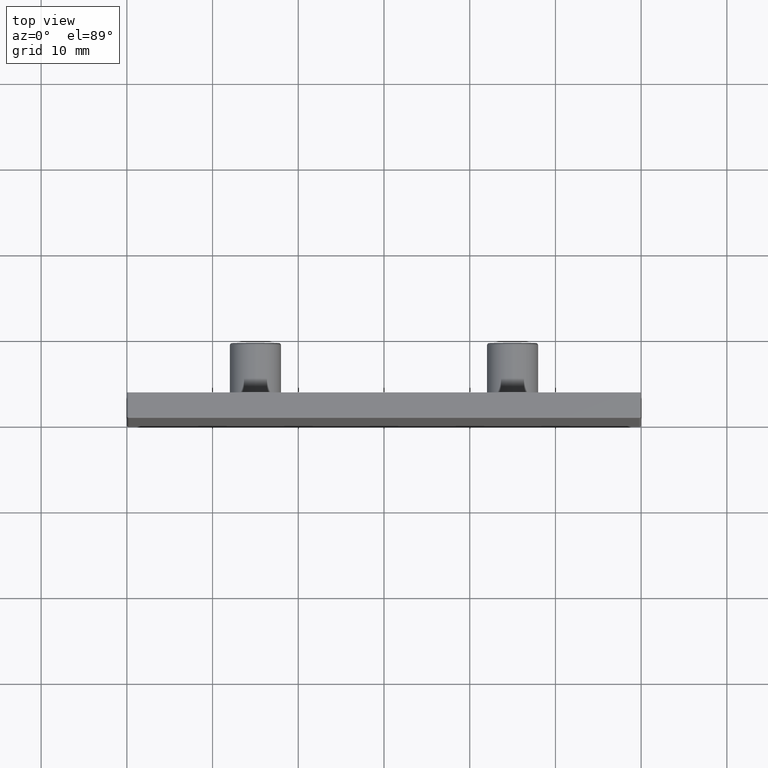
[diagram: clean part render]
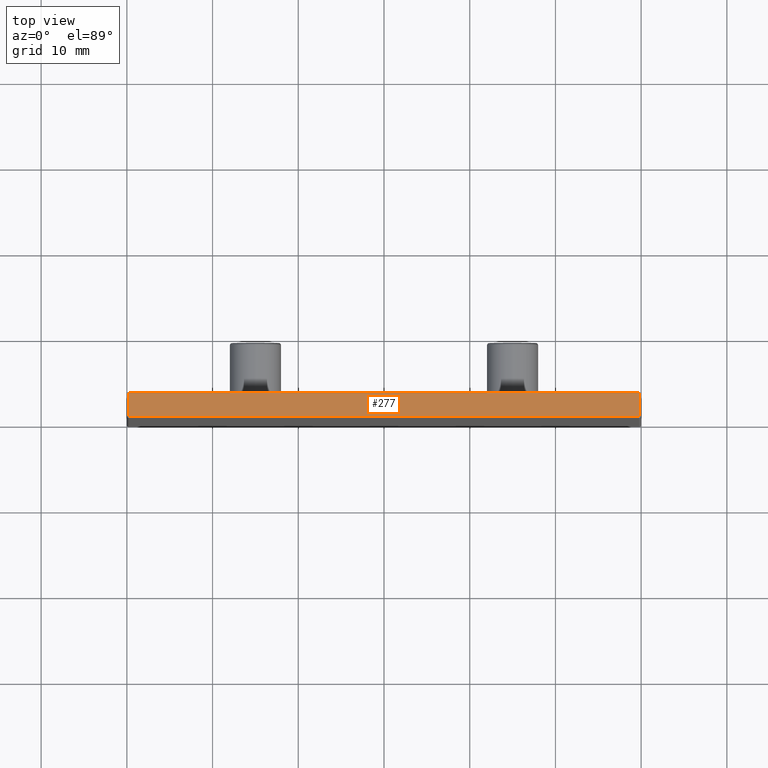
[diagram: same view with one face highlighted and labeled with its STEP entity id]
A machine part, top view. The second image highlights one B-rep face of the part: STEP entity #277.
In plain terms, the highlighted planar face has unit normal (0, 0, -1).
Its self-contained STEP definition (entity closure, byte-faithful):
#1 = EDGE_CURVE ( 'NONE', #841, #814, #1360, .T. ) ;
#6 = EDGE_CURVE ( 'NONE', #814, #826, #1371, .T. ) ;
#14 = EDGE_CURVE ( 'NONE', #839, #826, #1118, .T. ) ;
#205 = CARTESIAN_POINT ( 'NONE',  ( 59.75000000000000700, 1.625000000000000200, 0.0000000000000000000 ) ) ;
#206 = DIRECTION ( 'NONE',  ( -0.0000000000000000000, -1.000000000000000000, -0.0000000000000000000 ) ) ;
#277 = ADVANCED_FACE ( 'NONE', ( #453 ), #1514, .F. ) ;
#355 = AXIS2_PLACEMENT_3D ( 'NONE', #1515, #1516, #1517 ) ;
#453 = FACE_OUTER_BOUND ( 'NONE', #1235, .T. ) ;
#559 = DIRECTION ( 'NONE',  ( -1.000000000000000000, -0.0000000000000000000, -0.0000000000000000000 ) ) ;
#561 = CARTESIAN_POINT ( 'NONE',  ( 30.00000000000000000, 3.000000000000000000, 0.0000000000000000000 ) ) ;
#604 = CARTESIAN_POINT ( 'NONE',  ( 30.00000000000000400, 0.2500000000000000000, 0.0000000000000000000 ) ) ;
#605 = DIRECTION ( 'NONE',  ( -1.000000000000000000, 0.0000000000000000000, 0.0000000000000000000 ) ) ;
#615 = CARTESIAN_POINT ( 'NONE',  ( 0.2500000000000000000, 1.625000000000000200, 0.0000000000000000000 ) ) ;
#616 = DIRECTION ( 'NONE',  ( 0.0000000000000000000, 1.000000000000000000, 0.0000000000000000000 ) ) ;
#814 = VERTEX_POINT ( 'NONE', #1594 ) ;
#826 = VERTEX_POINT ( 'NONE', #1606 ) ;
#839 = VERTEX_POINT ( 'NONE', #1619 ) ;
#841 = VERTEX_POINT ( 'NONE', #1621 ) ;
#1114 = VECTOR ( 'NONE', #559, 1000.000000000000000 ) ;
#1118 = LINE ( 'NONE', #561, #1114 ) ;
#1235 = EDGE_LOOP ( 'NONE', ( #1295, #1296, #1297, #1298 ) ) ;
#1295 = ORIENTED_EDGE ( 'NONE', *, *, #6, .F. ) ;
#1296 = ORIENTED_EDGE ( 'NONE', *, *, #1, .F. ) ;
#1297 = ORIENTED_EDGE ( 'NONE', *, *, #1659, .F. ) ;
#1298 = ORIENTED_EDGE ( 'NONE', *, *, #14, .T. ) ;
#1360 = LINE ( 'NONE', #604, #1361 ) ;
#1361 = VECTOR ( 'NONE', #605, 1000.000000000000000 ) ;
#1371 = LINE ( 'NONE', #615, #1372 ) ;
#1372 = VECTOR ( 'NONE', #616, 1000.000000000000000 ) ;
#1514 = PLANE ( 'NONE',  #355 ) ;
#1515 = CARTESIAN_POINT ( 'NONE',  ( 59.75000000000000700, 0.2500000000000000000, 0.0000000000000000000 ) ) ;
#1516 = DIRECTION ( 'NONE',  ( 0.0000000000000000000, 0.0000000000000000000, -1.000000000000000000 ) ) ;
#1517 = DIRECTION ( 'NONE',  ( -1.000000000000000000, 0.0000000000000000000, 0.0000000000000000000 ) ) ;
#1594 = CARTESIAN_POINT ( 'NONE',  ( 0.2499999999615451500, 0.2499999999887758700, 0.0000000000000000000 ) ) ;
#1606 = CARTESIAN_POINT ( 'NONE',  ( 0.2500000000000000600, 3.000000000000000000, 0.0000000000000000000 ) ) ;
#1619 = CARTESIAN_POINT ( 'NONE',  ( 59.75000000000000700, 3.000000000000000000, 0.0000000000000000000 ) ) ;
#1621 = CARTESIAN_POINT ( 'NONE',  ( 59.74999999997436400, 0.2500000000000000000, 0.0000000000000000000 ) ) ;
#1659 = EDGE_CURVE ( 'NONE', #839, #841, #1758, .T. ) ;
#1758 = LINE ( 'NONE', #205, #1759 ) ;
#1759 = VECTOR ( 'NONE', #206, 1000.000000000000000 ) ;